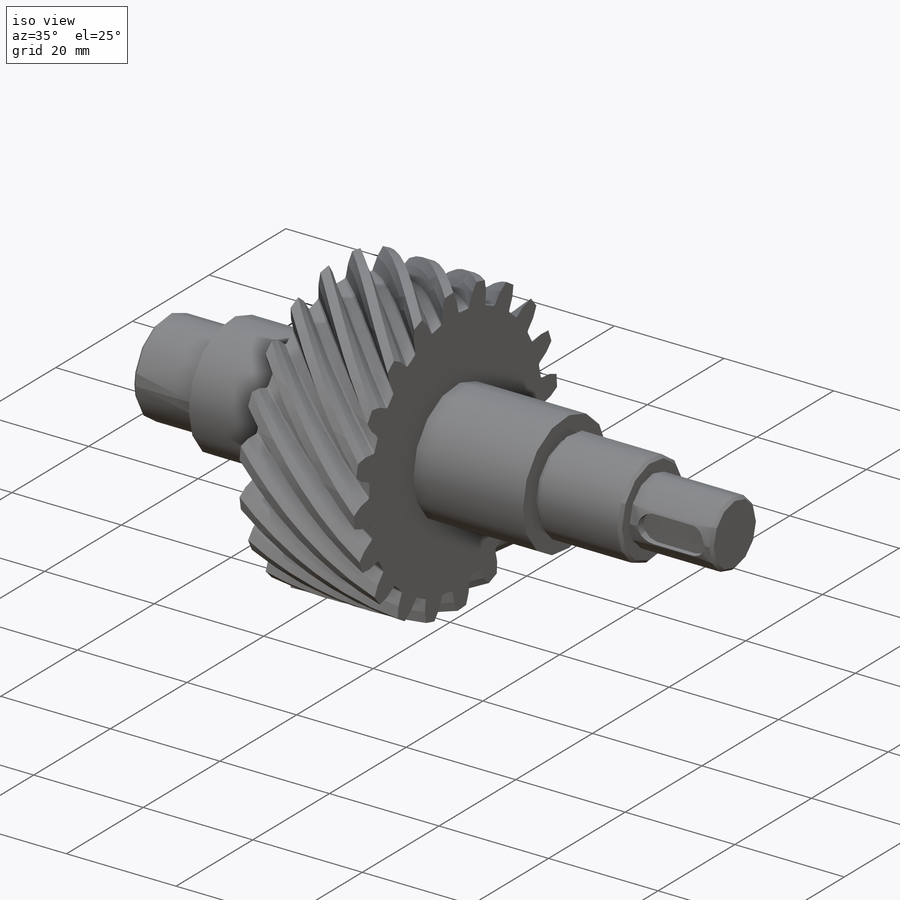
[diagram: iso view]
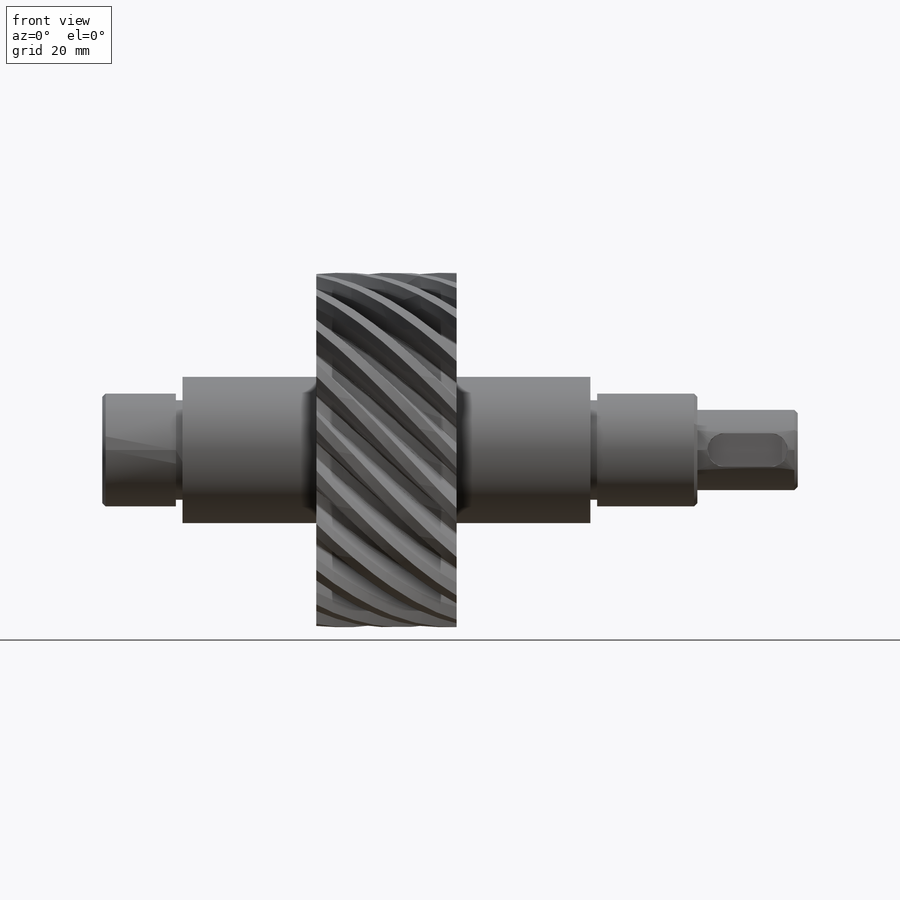
[diagram: front view]
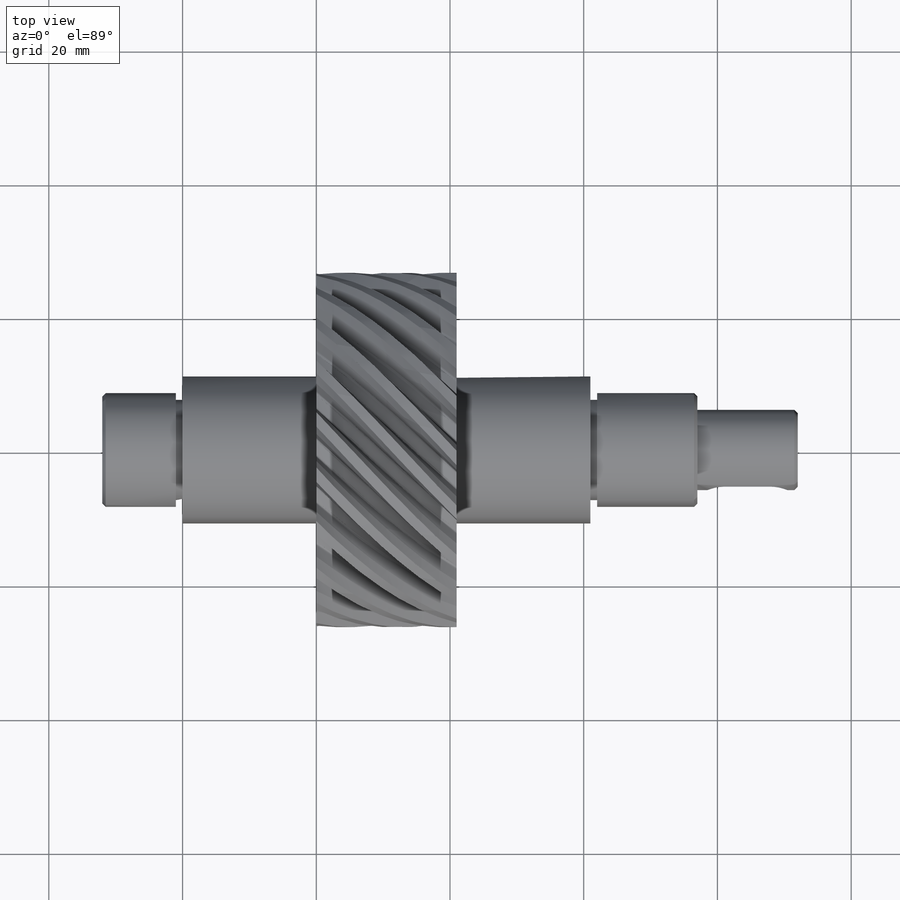
[diagram: top view]
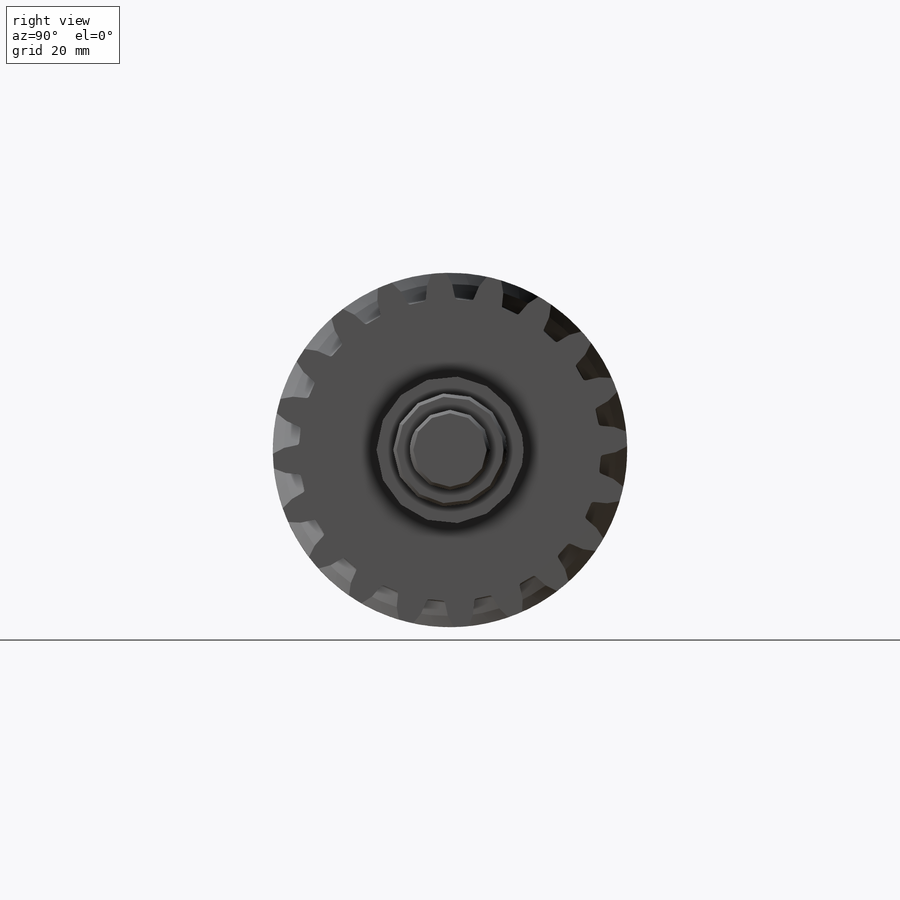
[diagram: right view]
SOLIDWORKS PART (.sldprt)
format: sldprt  version: not decoded by parser v0  size: 1,150,976 bytes
history: native  units: mm
features: sketch x24, plane x9, extrude x8, pattern_circular x3, cut_extrude x3, revolve x2, material x1, mirror x1, chamfer x1 (+12 scaffold rows collapsed)
feature tree (64):
  scaffold x12  (default folders/planes/origin — collapsed)
  material  "Material <not specified>"
  plane  "Plane1"
  plane  "Plane2"
  plane  "Plane3"
  sketch  "HoldingSke"  dims[c1.Dr=15.875mm c1.MHD=45.118mm c1.Hub_dia=75.0mm c1.Bore=0.8mm c1.MBD=0.8mm c1.Num_teeth=7.0mm c1.D1=115.0mm c2.Num_teeth=20.0deg c2.Pitch_radius=~46.415395mm c2.Pitch=~0.571429mm c2.Width=8.636mm c2.Chamfer_wid=3.175mm c2.Chamfer_dep=12.7mm c2.Overall_len=50.0mm c2.D1=115.0mm c2.Show_teeth=20.0deg c2.Thickness=21.0mm c2.OAL=~50.000051mm c2.T_dim=0.1mm c3.D1=115.0mm c3.Ap=20.0deg c3.H=19.05mm c3.Pitch_radius=~180.312849mm c3.Width=21.0mm c3.F=44.45mm c3.Backlash=0.053mm c3.Addendum_factor=~25.318689mm c3.Dedendum_factor=~11.91639mm c3.Fillet_factor=5.08mm c4.D1=~180.312849mm c4.Addendum_fac=1.0deg c5.D1=~180.312849mm c5.Dedendum_fac=1.25deg c6.D1=~180.312849mm c6.Clearance_fac=0.25deg c6.Dedendum_add=0.001mm c7.D1=115.0mm c7.Helix_angle=45.0deg c7.Factored_DP=~0.404081mm c7.Module=1.75mm]
  sketch  "BasProSke"  dims[c1.D2=~57.067268mm c1.D3=~57.067268mm c1.Fillet_rad=0.635mm c1.D1=80.0mm c1.h=15.875mm c2.D2=15.875mm c2.G1=0.635mm c2.G2=0.635mm c2.H2=~13.49375mm c2.Diameter=~80.079479mm c2.H1=~13.49375mm c2.Thickness=21.0mm c3.Diameter=52.995mm c3.MHD=25.4mm c3.D2=12.7mm c4.MHD=25.4mm c4.MHD_radius=12.7mm c5.MHD_radius=12.7mm c5.D1=~92.83079mm c6.D1=45.0deg c6.D2=~92.83079mm c7.D2=45.0deg]
  revolve  "Base-Revolve"  Angle=360deg
  plane  "PlaneNearMid"  Offset=5.25mm
  plane  "PlaneMid"  Offset=10.5mm
  plane  "PlaneFarMid"  Offset=15.75mm
  sketch  "Ref"
  sketch  "TooCutSkeRH"  dims[c1.D1=50.8mm c1.D2=101.6mm c1.R=~8.015287mm c2.D1=~10.148041mm c2.E=~20.715287mm c2.F=~13.61213mm c2.R=15.24mm c2.Db=~91.584948mm c2.H=19.05mm c2.Pitch_radius=~111.396948mm c2.Rt=38.1mm c2.Root_dia=45.118mm c2.Overcut_dia=~54.47985mm c2.Pitch_dia=49.495mm c2.Base_dia=~46.510086mm c2.Flank_rad=7.0mm c2.Root_fillet=0.4385mm c2.D3=45.0mm c3.D3=30.0deg c3.Pitch_radius=~37.132316mm c3.D1=~5.323628mm c3.W=~20.884668mm c3.V=0.762mm c4.V=~7.601398mm c4.D1=107.0mm c5.D1=~11.986918deg c6.D1=6.35mm c6.Ag=66.0deg c6.Cp=3.81mm c7.D1=~9.360719mm c8.D1=19.0deg c9.D1=~4.754529mm c9.Ag=64.0deg c9.L=~2.066544mm c9.Wf=6.858mm c10.D1=~10.255297mm c10.ANGLE=40.0deg c11.D1=~10.255297mm c11.Angle=40.0deg c12.D1=12.7mm c12.D2=~288.740008mm c12.TestA=130.0deg c12.TestL=63.5mm c13.D2=~92.83079mm c13.TestA=70.0deg c13.D1=~14.973046mm c13.Angle=18.0deg c14.D1=~60.512969mm c14.Half_ang=9.0deg c14.Half_CT=~1.901916mm c15.D1=31.75mm c15.Pres_ang=14.5deg c15.A=~41.666667deg c15.B=~11.777778deg c15.Angle=40.0deg]
  sketch  "TooCutSkeMidRH"  dims[c1.D1=50.8mm c1.D2=101.6mm c1.R=~8.015287mm c2.D1=~10.148041mm c2.E=~20.715287mm c2.F=~13.61213mm c2.R=15.24mm c2.Db=~91.584948mm c2.H=19.05mm c2.Pitch_radius=~111.396948mm c2.Rt=38.1mm c2.Root_dia=45.118mm c2.Overcut_dia=~54.47985mm c2.Pitch_dia=49.495mm c2.Base_dia=~46.510086mm c2.Flank_rad=7.0mm c2.Root_fillet=0.4385mm c2.D3=45.0mm c3.D3=30.0deg c3.Pitch_radius=~37.132316mm c3.D1=~5.323628mm c3.W=~20.884668mm c3.V=0.762mm c4.V=~7.601398mm c4.D1=107.0mm c5.D1=~11.986918deg c6.D1=6.35mm c6.Ag=66.0deg c6.Cp=3.81mm c7.D1=~9.360719mm c8.D1=19.0deg c9.D1=~4.754529mm c9.Ag=64.0deg c9.L=~2.066544mm c9.Wf=6.858mm c10.D1=~10.255297mm c10.ANGLE=40.0deg c11.D1=~10.255297mm c11.Angle=40.0deg c12.D1=12.7mm c12.D2=~288.740008mm c12.TestA=130.0deg c12.TestL=63.5mm c13.D2=~92.83079mm c13.TestA=70.0deg c13.D1=~14.973046mm c13.Angle=18.0deg c14.D1=~60.512969mm c14.Half_ang=9.0deg c14.Half_CT=~1.901916mm c15.D1=31.75mm c15.Pres_ang=14.5deg c15.Angle=~24.309756deg c15.A=~41.666667deg c15.B=~11.777778deg c16.Angle=40.0deg]
  sketch  "TooCutSkeNeaMidRH"  dims[c1.D1=50.8mm c1.D2=101.6mm c1.R=~8.015287mm c2.D1=~10.148041mm c2.E=~20.715287mm c2.F=~13.61213mm c2.R=15.24mm c2.Db=~91.584948mm c2.H=19.05mm c2.Pitch_radius=~111.396948mm c2.Rt=38.1mm c2.Root_dia=45.118mm c2.Overcut_dia=~54.47985mm c2.Pitch_dia=49.495mm c2.Base_dia=~46.510086mm c2.Flank_rad=7.0mm c2.Root_fillet=0.4385mm c2.D3=45.0mm c3.D3=30.0deg c3.Pitch_radius=~37.132316mm c3.D1=~5.323628mm c3.W=~20.884668mm c3.V=0.762mm c4.V=~7.601398mm c4.D1=107.0mm c5.D1=~11.986918deg c6.D1=6.35mm c6.Ag=66.0deg c6.Cp=3.81mm c7.D1=~9.360719mm c8.D1=19.0deg c9.D1=~4.754529mm c9.Ag=64.0deg c9.L=~2.066544mm c9.Wf=6.858mm c10.D1=~10.255297mm c10.ANGLE=40.0deg c11.D1=~10.255297mm c11.Angle=40.0deg c12.D1=12.7mm c12.D2=~288.740008mm c12.TestA=130.0deg c12.TestL=63.5mm c13.D2=~92.83079mm c13.TestA=70.0deg c13.D1=~14.973046mm c13.Angle=18.0deg c14.D1=~60.512969mm c14.Half_ang=9.0deg c14.Half_CT=~1.901916mm c15.D1=31.75mm c15.Pres_ang=14.5deg c15.Angle=~12.154878deg c15.A=~41.666667deg c15.B=~11.777778deg c16.Angle=40.0deg]
  sketch  "TooCutSkeFarMidRH"  dims[c1.D1=50.8mm c1.D2=101.6mm c1.R=~8.015287mm c2.D1=~10.148041mm c2.E=~20.715287mm c2.F=~13.61213mm c2.R=15.24mm c2.Db=~91.584948mm c2.H=19.05mm c2.Pitch_radius=~111.396948mm c2.Rt=38.1mm c2.Root_dia=45.118mm c2.Overcut_dia=~54.47985mm c2.Pitch_dia=49.495mm c2.Base_dia=~46.510086mm c2.Flank_rad=7.0mm c2.Root_fillet=0.4385mm c2.D3=45.0mm c3.D3=30.0deg c3.Pitch_radius=~37.132316mm c3.D1=~5.323628mm c3.W=~20.884668mm c3.V=0.762mm c4.V=~7.601398mm c4.D1=107.0mm c5.D1=~11.986918deg c6.D1=6.35mm c6.Ag=66.0deg c6.Cp=3.81mm c7.D1=~9.360719mm c8.D1=19.0deg c9.D1=~4.754529mm c9.Ag=64.0deg c9.L=~2.066544mm c9.Wf=6.858mm c10.D1=~10.255297mm c10.ANGLE=40.0deg c11.D1=~10.255297mm c11.Angle=40.0deg c12.D1=12.7mm c12.D2=~288.740008mm c12.TestA=130.0deg c12.TestL=63.5mm c13.D2=~92.83079mm c13.TestA=70.0deg c13.D1=~14.973046mm c13.Angle=18.0deg c14.D1=~60.512969mm c14.Half_ang=9.0deg c14.Half_CT=~1.901916mm c15.D1=31.75mm c15.Pres_ang=14.5deg c15.Angle=~36.464634deg c15.A=~41.666667deg c15.B=~11.777778deg c16.Angle=40.0deg]
  sketch  "TooCutSkeFarRH"  dims[c1.D1=50.8mm c1.D2=101.6mm c1.R=~8.015287mm c2.D1=~10.148041mm c2.E=~20.715287mm c2.F=~13.61213mm c2.R=15.24mm c2.Db=~91.584948mm c2.H=19.05mm c2.Pitch_radius=~111.396948mm c2.Rt=38.1mm c2.Root_dia=45.118mm c2.Overcut_dia=~54.47985mm c2.Pitch_dia=49.495mm c2.Base_dia=~46.510086mm c2.Flank_rad=7.0mm c2.Root_fillet=0.4385mm c2.D3=45.0mm c3.D3=30.0deg c3.Pitch_radius=~37.132316mm c3.D1=~5.323628mm c3.W=~20.884668mm c3.V=0.762mm c4.V=~7.601398mm c4.D1=107.0mm c5.D1=~11.986918deg c6.D1=6.35mm c6.Ag=66.0deg c6.Cp=3.81mm c7.D1=~9.360719mm c8.D1=19.0deg c9.D1=~4.754529mm c9.Ag=64.0deg c9.L=~2.066544mm c9.Wf=6.858mm c10.D1=~10.255297mm c10.ANGLE=40.0deg c11.D1=~10.255297mm c11.Angle=40.0deg c12.D1=12.7mm c12.D2=~288.740008mm c12.TestA=130.0deg c12.TestL=63.5mm c13.D2=~92.83079mm c13.TestA=70.0deg c13.D1=~14.973046mm c13.Angle=18.0deg c14.D1=~60.512969mm c14.Half_ang=9.0deg c14.Half_CT=~1.901916mm c15.D1=31.75mm c15.Pres_ang=14.5deg c15.Angle=~48.619512deg c15.A=~41.666667deg c15.B=~11.777778deg c16.Angle=40.0deg]
  sketch  "TooCutSkeLH"  dims[c1.D1=50.8mm c1.D2=101.6mm c1.R=~8.015287mm c2.D1=~10.148041mm c2.E=~20.715287mm c2.F=~13.61213mm c2.R=15.24mm c2.Db=~91.584948mm c2.H=19.05mm c2.Pitch_radius=~111.396948mm c2.Rt=38.1mm c2.Root_dia=45.118mm c2.Overcut_dia=~54.47985mm c2.Pitch_dia=49.495mm c2.Base_dia=~46.510086mm c2.Flank_rad=7.0mm c2.Root_fillet=0.4385mm c2.D3=45.0mm c3.D3=30.0deg c3.Pitch_radius=~37.132316mm c3.D1=~5.323628mm c3.W=~20.884668mm c3.V=0.762mm c4.V=~7.601398mm c4.D1=107.0mm c5.D1=~11.986918deg c6.D1=6.35mm c6.Ag=66.0deg c6.Cp=3.81mm c7.D1=~9.360719mm c8.D1=19.0deg c9.D1=~4.754529mm c9.Ag=64.0deg c9.L=~2.066544mm c9.Wf=6.858mm c10.D1=~10.255297mm c10.ANGLE=40.0deg c11.D1=~10.255297mm c11.Angle=40.0deg c12.D1=12.7mm c12.D2=~288.740008mm c12.TestA=130.0deg c12.TestL=63.5mm c13.D2=~92.83079mm c13.TestA=70.0deg c13.D1=~14.973046mm c13.Angle=18.0deg c14.D1=~60.512969mm c14.Half_ang=9.0deg c14.Half_CT=~1.901916mm c15.D1=31.75mm c15.Pres_ang=14.5deg c15.A=~41.666667deg c15.B=~11.777778deg c15.Angle=40.0deg]
  sketch  "TooCutSkeMidLH"  dims[c1.D1=50.8mm c1.D2=101.6mm c1.R=~8.015287mm c2.D1=~10.148041mm c2.E=~20.715287mm c2.F=~13.61213mm c2.R=15.24mm c2.Db=~91.584948mm c2.H=19.05mm c2.Pitch_radius=~111.396948mm c2.Rt=38.1mm c2.Root_dia=45.118mm c2.Overcut_dia=~54.47985mm c2.Pitch_dia=49.495mm c2.Base_dia=~46.510086mm c2.Flank_rad=7.0mm c2.Root_fillet=0.4385mm c2.D3=45.0mm c3.D3=30.0deg c3.Pitch_radius=~37.132316mm c3.D1=~5.323628mm c3.W=~20.884668mm c3.V=0.762mm c4.V=~7.601398mm c4.D1=107.0mm c5.D1=~11.986918deg c6.D1=6.35mm c6.Ag=66.0deg c6.Cp=3.81mm c7.D1=~9.360719mm c8.D1=19.0deg c9.D1=~4.754529mm c9.Ag=64.0deg c9.L=~2.066544mm c9.Wf=6.858mm c10.D1=~10.255297mm c10.ANGLE=40.0deg c11.D1=~10.255297mm c11.Angle=40.0deg c12.D1=12.7mm c12.D2=~288.740008mm c12.TestA=130.0deg c12.TestL=63.5mm c13.D2=~92.83079mm c13.TestA=70.0deg c13.D1=~14.973046mm c13.Angle=18.0deg c14.D1=~60.512969mm c14.Half_ang=9.0deg c14.Half_CT=~1.901916mm c15.D1=31.75mm c15.Pres_ang=14.5deg c15.Angle=~24.309756deg c15.A=~41.666667deg c15.B=~11.777778deg c16.Angle=40.0deg]
  sketch  "TooCutSkeFarLH"  dims[c1.D1=50.8mm c1.D2=101.6mm c1.R=~8.015287mm c2.D1=~10.148041mm c2.E=~20.715287mm c2.F=~13.61213mm c2.R=15.24mm c2.Db=~91.584948mm c2.H=19.05mm c2.Pitch_radius=~111.396948mm c2.Rt=38.1mm c2.Root_dia=45.118mm c2.Overcut_dia=~54.47985mm c2.Pitch_dia=49.495mm c2.Base_dia=~46.510086mm c2.Flank_rad=7.0mm c2.Root_fillet=0.4385mm c2.D3=45.0mm c3.D3=30.0deg c3.Pitch_radius=~37.132316mm c3.D1=~5.323628mm c3.W=~20.884668mm c3.V=0.762mm c4.V=~7.601398mm c4.D1=107.0mm c5.D1=~11.986918deg c6.D1=6.35mm c6.Ag=66.0deg c6.Cp=3.81mm c7.D1=~9.360719mm c8.D1=19.0deg c9.D1=~4.754529mm c9.Ag=64.0deg c9.L=~2.066544mm c9.Wf=6.858mm c10.D1=~10.255297mm c10.ANGLE=40.0deg c11.D1=~10.255297mm c11.Angle=40.0deg c12.D1=12.7mm c12.D2=~288.740008mm c12.TestA=130.0deg c12.TestL=63.5mm c13.D2=~92.83079mm c13.TestA=70.0deg c13.D1=~14.973046mm c13.Angle=18.0deg c14.D1=~60.512969mm c14.Half_ang=9.0deg c14.Half_CT=~1.901916mm c15.D1=31.75mm c15.Pres_ang=14.5deg c15.Angle=~48.619512deg c15.A=~41.666667deg c15.B=~11.777778deg c16.Angle=40.0deg]
  pattern_circular  "TeethCutsRH"  Count=20 Angle=18deg Num_teeth=20
  sketch  "TooCutSkeNeaMidLH"  dims[c1.D1=50.8mm c1.D2=101.6mm c1.R=~8.015287mm c2.D1=~10.148041mm c2.E=~20.715287mm c2.F=~13.61213mm c2.R=15.24mm c2.Db=~91.584948mm c2.H=19.05mm c2.Pitch_radius=~111.396948mm c2.Rt=38.1mm c2.Root_dia=45.118mm c2.Overcut_dia=~54.47985mm c2.Pitch_dia=49.495mm c2.Base_dia=~46.510086mm c2.Flank_rad=7.0mm c2.Root_fillet=0.4385mm c2.D3=45.0mm c3.D3=30.0deg c3.Pitch_radius=~37.132316mm c3.D1=~5.323628mm c3.W=~20.884668mm c3.V=0.762mm c4.V=~7.601398mm c4.D1=107.0mm c5.D1=~11.986918deg c6.D1=6.35mm c6.Ag=66.0deg c6.Cp=3.81mm c7.D1=~9.360719mm c8.D1=19.0deg c9.D1=~4.754529mm c9.Ag=64.0deg c9.L=~2.066544mm c9.Wf=6.858mm c10.D1=~10.255297mm c10.ANGLE=40.0deg c11.D1=~10.255297mm c11.Angle=40.0deg c12.D1=12.7mm c12.D2=~288.740008mm c12.TestA=130.0deg c12.TestL=63.5mm c13.D2=~92.83079mm c13.TestA=70.0deg c13.D1=~14.973046mm c13.Angle=18.0deg c14.D1=~60.512969mm c14.Half_ang=9.0deg c14.Half_CT=~1.901916mm c15.D1=31.75mm c15.Pres_ang=14.5deg c15.Angle=~12.154878deg c15.A=~41.666667deg c15.B=~11.777778deg c16.Angle=40.0deg]
  sketch  "TooCutSkeFarMidLH"  dims[c1.D1=50.8mm c1.D2=101.6mm c1.R=~8.015287mm c2.D1=~10.148041mm c2.E=~20.715287mm c2.F=~13.61213mm c2.R=15.24mm c2.Db=~91.584948mm c2.H=19.05mm c2.Pitch_radius=~111.396948mm c2.Rt=38.1mm c2.Root_dia=45.118mm c2.Overcut_dia=~54.47985mm c2.Pitch_dia=49.495mm c2.Base_dia=~46.510086mm c2.Flank_rad=7.0mm c2.Root_fillet=0.4385mm c2.D3=45.0mm c3.D3=30.0deg c3.Pitch_radius=~37.132316mm c3.D1=~5.323628mm c3.W=~20.884668mm c3.V=0.762mm c4.V=~7.601398mm c4.D1=107.0mm c5.D1=~11.986918deg c6.D1=6.35mm c6.Ag=66.0deg c6.Cp=3.81mm c7.D1=~9.360719mm c8.D1=19.0deg c9.D1=~4.754529mm c9.Ag=64.0deg c9.L=~2.066544mm c9.Wf=6.858mm c10.D1=~10.255297mm c10.ANGLE=40.0deg c11.D1=~10.255297mm c11.Angle=40.0deg c12.D1=12.7mm c12.D2=~288.740008mm c12.TestA=130.0deg c12.TestL=63.5mm c13.D2=~92.83079mm c13.TestA=70.0deg c13.D1=~14.973046mm c13.Angle=18.0deg c14.D1=~60.512969mm c14.Half_ang=9.0deg c14.Half_CT=~1.901916mm c15.D1=31.75mm c15.Pres_ang=14.5deg c15.Angle=~36.464634deg c15.A=~41.666667deg c15.B=~11.777778deg c16.Angle=40.0deg]
  revolve  "ToothCutLH"  [1 undecoded]
  pattern_circular  "TeethCutsLH"  Count=20 Angle=18deg Num_teeth=20
  sketch  "HubNeaOneSke"  dims[Diameter=45.118mm]
  extrude  "HubNearOne"  Depth=29.000051mm Length=29.000051mm
  sketch  "HubNeaBotSke"  dims[Diameter=45.118mm]
  extrude  "HubNearBoth"  Depth=14.500025mm Length=14.500025mm
  plane  "FarPln"  Offset=21mm Thickness=21mm
  sketch  "HubFarSke"  dims[Diameter=45.118mm]
  extrude  "HubFar"  Depth=14.500025mm Length=14.500025mm
  sketch  "BorSke"  dims[Diameter=0.8mm D2=35.0mm D3=12.0mm]
  cut_extrude  "Bore"  Depth=100.000102mm
  sketch  "KeySke"  dims[D1=60.0mm Offset=0.5mm Width=0.1mm]
  cut_extrude  "Keyway"  Depth=100.000102mm
  pattern_circular  "Keyway2"  Count=2 Angle=90deg ConfigurationName=0mm CopiedFlag=1 PartNumberID=0mm
  plane  "Plane4"  Offset=10.5mm
  sketch  "Sketch3"  dims[D1=22.0mm]
  extrude  "Boss-Extrude1"  Depth=61mm
  sketch  "Sketch4"  dims[D1=3.5mm]
  extrude  "Boss-Extrude2"  Depth=1mm
  mirror  "Mirror1"
  sketch  "Sketch5"  dims[D1=17.0mm]
  extrude  "Boss-Extrude3"  Depth=11mm
  sketch  "Sketch7"  dims[D1=17.0mm]
  extrude  "Boss-Extrude4"  Depth=15mm
  sketch  "Sketch8"  dims[D1=12.0mm]
  extrude  "Boss-Extrude5"  Depth=15mm
  plane  "Plane5"  Offset=6mm
  sketch  "Sketch9"  dims[c1.D2=~1.578714mm c1.D3=~1.578714mm c1.D1=5.0mm c2.D2=12.0mm c2.D3=1.5mm c2.D4=1.5mm]
  cut_extrude  "Cut-Extrude1"  Depth=1.5mm
  chamfer  "Chamfer1"  Distance=0.5mm Angle=45deg
decode coverage: 39 of 42 modeling features carry decoded parameters
note: ~ marks probable driven/reference dimensions
note: 1 parameter value undecoded
note: suppression state not decoded; provenance and decode notes live in map.json
